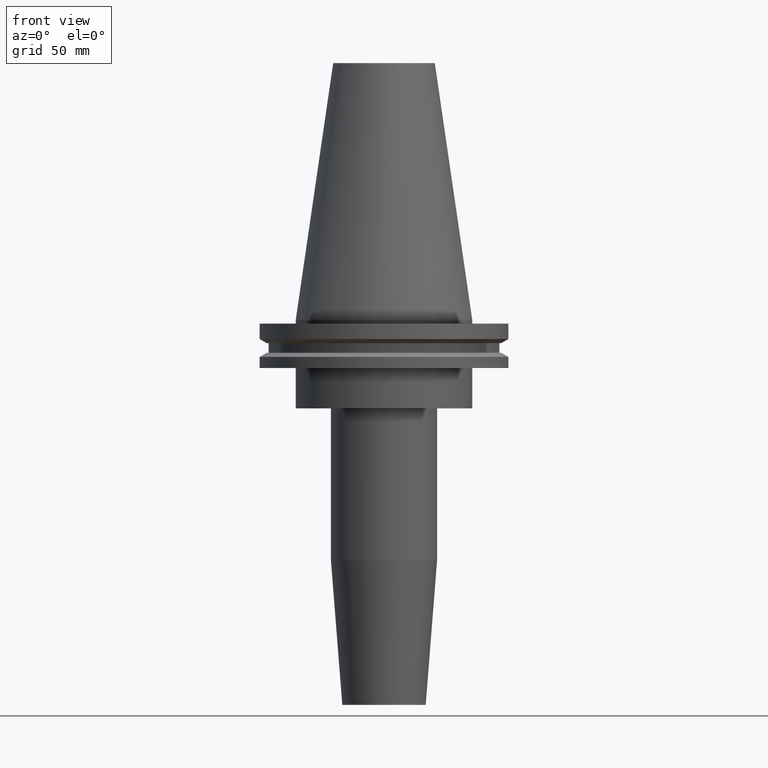
[diagram: clean part render]
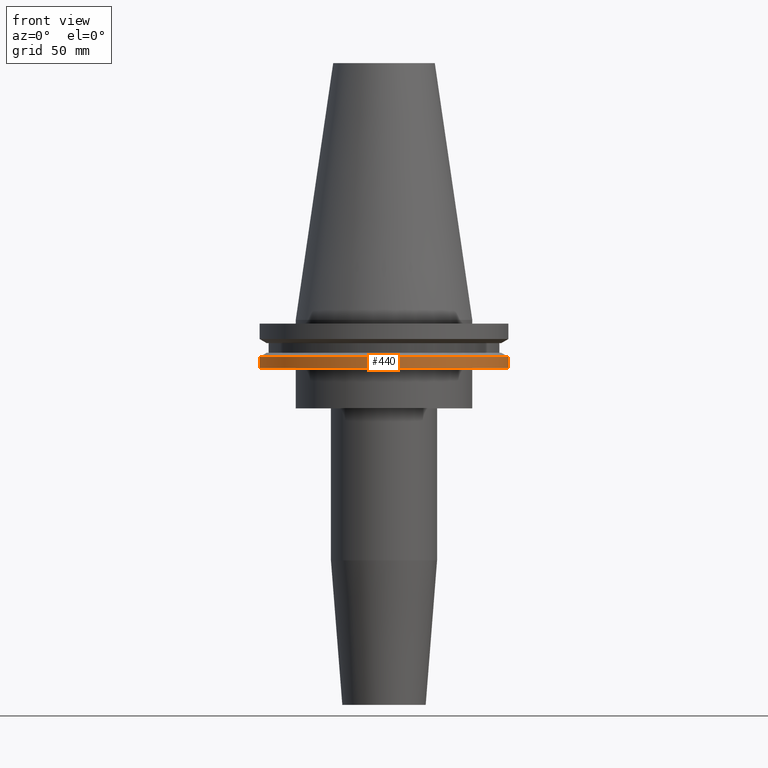
[diagram: same view with one face highlighted and labeled with its STEP entity id]
A machine part, front view. The second image highlights one B-rep face of the part: STEP entity #440.
In plain terms, the highlighted cylindrical surface (partial cylindrical patch) has radius 49.215 mm, axis along (-0, -0, 1).
Its self-contained STEP definition (entity closure, byte-faithful):
#39 = CARTESIAN_POINT ( 'NONE',  ( 49.21499999999998920, 0.000000000000000000, -14.65761014474876944 ) ) ;
#93 = ORIENTED_EDGE ( 'NONE', *, *, #485, .T. ) ;
#101 = VERTEX_POINT ( 'NONE', #176 ) ;
#104 = EDGE_CURVE ( 'NONE', #796, #101, #113, .T. ) ;
#112 = DIRECTION ( 'NONE',  ( 1.000000000000000000, 0.000000000000000000, 0.000000000000000000 ) ) ;
#113 = CIRCLE ( 'NONE', #835, 49.21499999999998920 ) ;
#162 = CIRCLE ( 'NONE', #574, 49.21499999999998920 ) ;
#175 = DIRECTION ( 'NONE',  ( -0.000000000000000000, -0.000000000000000000, 1.000000000000000000 ) ) ;
#176 = CARTESIAN_POINT ( 'NONE',  ( 49.21499999999998920, 0.000000000000000000, -19.04999999999999716 ) ) ;
#188 = LINE ( 'NONE', #513, #726 ) ;
#197 = DIRECTION ( 'NONE',  ( -0.000000000000000000, -0.000000000000000000, 1.000000000000000000 ) ) ;
#227 = CARTESIAN_POINT ( 'NONE',  ( 0.000000000000000000, 0.000000000000000000, 101.5999999999999943 ) ) ;
#237 = DIRECTION ( 'NONE',  ( 1.000000000000000000, 0.000000000000000000, 0.000000000000000000 ) ) ;
#242 = ORIENTED_EDGE ( 'NONE', *, *, #368, .F. ) ;
#294 = FACE_OUTER_BOUND ( 'NONE', #399, .T. ) ;
#309 = CARTESIAN_POINT ( 'NONE',  ( -49.21499999999998920, 6.027099222003697037E-15, -14.65761014474876944 ) ) ;
#329 = AXIS2_PLACEMENT_3D ( 'NONE', #227, #486, #237 ) ;
#368 = EDGE_CURVE ( 'NONE', #796, #747, #674, .T. ) ;
#399 = EDGE_LOOP ( 'NONE', ( #242, #542, #93, #718 ) ) ;
#436 = CARTESIAN_POINT ( 'NONE',  ( 0.000000000000000000, 0.000000000000000000, -19.04999999999999716 ) ) ;
#440 = ADVANCED_FACE ( 'NONE', ( #294 ), #825, .T. ) ;
#485 = EDGE_CURVE ( 'NONE', #101, #799, #188, .T. ) ;
#486 = DIRECTION ( 'NONE',  ( -0.000000000000000000, -0.000000000000000000, 1.000000000000000000 ) ) ;
#513 = CARTESIAN_POINT ( 'NONE',  ( 49.21499999999998920, 0.000000000000000000, 101.5999999999999943 ) ) ;
#531 = DIRECTION ( 'NONE',  ( -0.000000000000000000, -0.000000000000000000, 1.000000000000000000 ) ) ;
#542 = ORIENTED_EDGE ( 'NONE', *, *, #104, .T. ) ;
#574 = AXIS2_PLACEMENT_3D ( 'NONE', #613, #175, #694 ) ;
#576 = VECTOR ( 'NONE', #531, 1000.000000000000000 ) ;
#613 = CARTESIAN_POINT ( 'NONE',  ( 0.000000000000000000, 0.000000000000000000, -14.65761014474876944 ) ) ;
#661 = CARTESIAN_POINT ( 'NONE',  ( -49.21499999999998920, 6.027099222003697037E-15, 101.5999999999999943 ) ) ;
#674 = LINE ( 'NONE', #661, #576 ) ;
#678 = CARTESIAN_POINT ( 'NONE',  ( -49.21499999999998920, 6.027099222003697037E-15, -19.04999999999999716 ) ) ;
#694 = DIRECTION ( 'NONE',  ( 1.000000000000000000, 0.000000000000000000, 0.000000000000000000 ) ) ;
#701 = DIRECTION ( 'NONE',  ( -0.000000000000000000, -0.000000000000000000, 1.000000000000000000 ) ) ;
#718 = ORIENTED_EDGE ( 'NONE', *, *, #791, .F. ) ;
#726 = VECTOR ( 'NONE', #197, 1000.000000000000000 ) ;
#747 = VERTEX_POINT ( 'NONE', #309 ) ;
#791 = EDGE_CURVE ( 'NONE', #747, #799, #162, .T. ) ;
#796 = VERTEX_POINT ( 'NONE', #678 ) ;
#799 = VERTEX_POINT ( 'NONE', #39 ) ;
#825 = CYLINDRICAL_SURFACE ( 'NONE', #329, 49.21499999999998920 ) ;
#835 = AXIS2_PLACEMENT_3D ( 'NONE', #436, #701, #112 ) ;